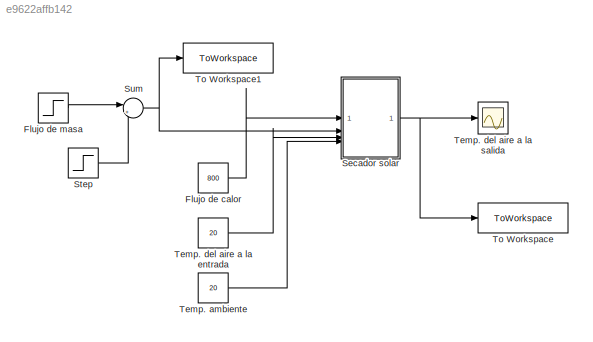
MODEL slx_e9622affb142
KIND model
CONFIG AbsTol = auto
CONFIG EnableMultiTasking = off
CONFIG FixedStep = auto
CONFIG MaxStep = auto
CONFIG MinStep = auto
CONFIG RelTol = 1e-3
CONFIG SampleTimeConstraint = Unconstrained
CONFIG SolverName = VariableStepAuto
CONFIG StartTime = 0.0
CONFIG StopTime = 1000
BLOCK [Constant] Flujo de calor
  Value = 800
BLOCK [Step] Flujo de masa
  After = 0.02
  SampleTime = 0
  Time = 0
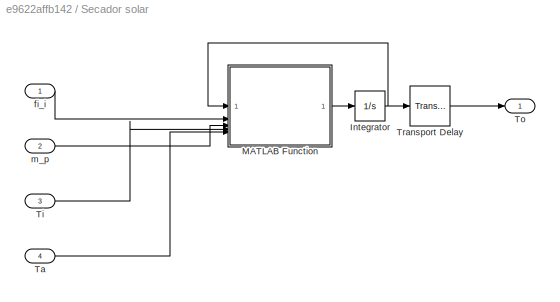
BLOCK [SubSystem] Secador solar
BLOCK [Integrator] Secador solar/Integrator
  InitialCondition = 20
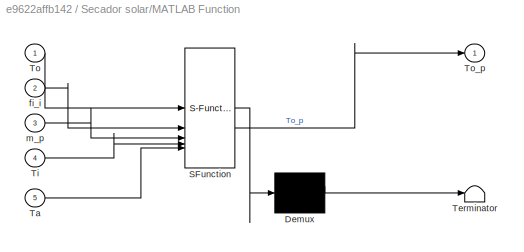
BLOCK [SubSystem] Secador solar/MATLAB Function
  ErrorFcn = Stateflow.Translate.translate
  PermitHierarchicalResolution = ExplicitOnly
  SFBlockType = MATLAB Function
  TreatAsAtomicUnit = on
BLOCK [Demux] Secador solar/MATLAB Function/ Demux 
  Outputs = 1
BLOCK [S-Function] Secador solar/MATLAB Function/ SFunction 
  EnableBusSupport = on
  FunctionName = sf_sfun
  PortCounts = [5 2]
  SFcnIsStateOwnerBlock = off
  SFunctionDeploymentMode = off
  Tag = Stateflow S-Function 2
BLOCK [Terminator] Secador solar/MATLAB Function/ Terminator 
BLOCK [Inport] Secador solar/MATLAB Function/Ta
  Port = 5
BLOCK [Inport] Secador solar/MATLAB Function/Ti
  Port = 4
BLOCK [Inport] Secador solar/MATLAB Function/To
BLOCK [Outport] Secador solar/MATLAB Function/To_p
BLOCK [Inport] Secador solar/MATLAB Function/fi_i
  Port = 2
BLOCK [Inport] Secador solar/MATLAB Function/m_p
  Port = 3
BLOCK [Inport] Secador solar/Ta
  Port = 4
BLOCK [Inport] Secador solar/Ti
  Port = 3
BLOCK [Outport] Secador solar/To
BLOCK [TransportDelay] Secador solar/Transport Delay
  DelayTime = 10
  InitialOutput = 20
BLOCK [Inport] Secador solar/fi_i
BLOCK [Inport] Secador solar/m_p
  Port = 2
BLOCK [Step] Step
  After = 0.03
  SampleTime = 0
  Time = 450
BLOCK [Sum] Sum
  Inputs = |++
BLOCK [Constant] Temp. ambiente
  Value = 20
BLOCK [Constant] Temp. del aire a la entrada
  Value = 20
BLOCK [Scope] Temp. del aire a la salida
  Floating = off
  NumInputPorts = 1
  ScopeSpecificationString = Simulink.scopes.TimeScopeBlockCfg('CurrentConfiguration', extmgr.ConfigurationSet(extmgr.Configuration('Core','General UI',true),extmgr.Configuration('Core','Source UI',true),extmgr.Configuration('Sources','WiredSimulink',true),extmgr.Configuration('Visuals','Time Domain',true,'SerializedDisplays',{struct('MinYLimReal','28.61739','MaxYLimReal','62.58373','YLabelReal','','MinYLimMag','28.61739','Ma...<+1802ch>
BLOCK [ToWorkspace] To Workspace
  FixptAsFi = on
  MaxDataPoints = inf
  SampleTime = T_mu
  VariableName = To
BLOCK [ToWorkspace] To Workspace1
  FixptAsFi = on
  MaxDataPoints = inf
  SampleTime = T_mu
  VariableName = m_p
LINE Flujo de calor:1 -> Secador solar:1
LINE Flujo de masa:1 -> Sum:1
NET Secador solar/Integrator:1 -> Secador solar/MATLAB Function:1, Secador solar/Transport Delay:1
LINE Secador solar/MATLAB Function:1 -> Secador solar/Integrator:1
LINE Secador solar/Ta:1 -> Secador solar/MATLAB Function:5
LINE Secador solar/Ti:1 -> Secador solar/MATLAB Function:4
LINE Secador solar/Transport Delay:1 -> Secador solar/To:1
LINE Secador solar/fi_i:1 -> Secador solar/MATLAB Function:2
LINE Secador solar/m_p:1 -> Secador solar/MATLAB Function:3
NET Secador solar:1 -> Temp. del aire a la salida:1, To Workspace:1
LINE Step:1 -> Sum:2
NET Sum:1 -> Secador solar:2, To Workspace1:1
LINE Temp. ambiente:1 -> Secador solar:4
LINE Temp. del aire a la entrada:1 -> Secador solar:3
note: NET lines group one-source signal fan-out (src -> all destinations, sorted); 1:1 wires keep LINE
CHART Secador solar/MATLAB Function states=1 transitions=1
  STATE_LABEL 'eML_blk_kernel()'
  STATE_LABEL 'SCRIPT:\nfunction To_p = fcn(To,fi_i,m_p,Ti,Ta)\n\n%Simula el calentamiento del aire en un secador solar\n%To: temperatura del aire a la salida (°C)\n%Ti: temperatura del aire a la entrada (°C)\n%V: voltaje aplicado a la resistencia\n%   eléctrica del calentador (volt)\n%m_p: flujo de masa del aire que ingresa y sale del\n%     secador solar (Kg/seg)\n%Ta: temperatura ambiente (°C)\n\nM = 0.9; %masa del aire ...<+231ch>'
CHART  states=0 transitions=0
